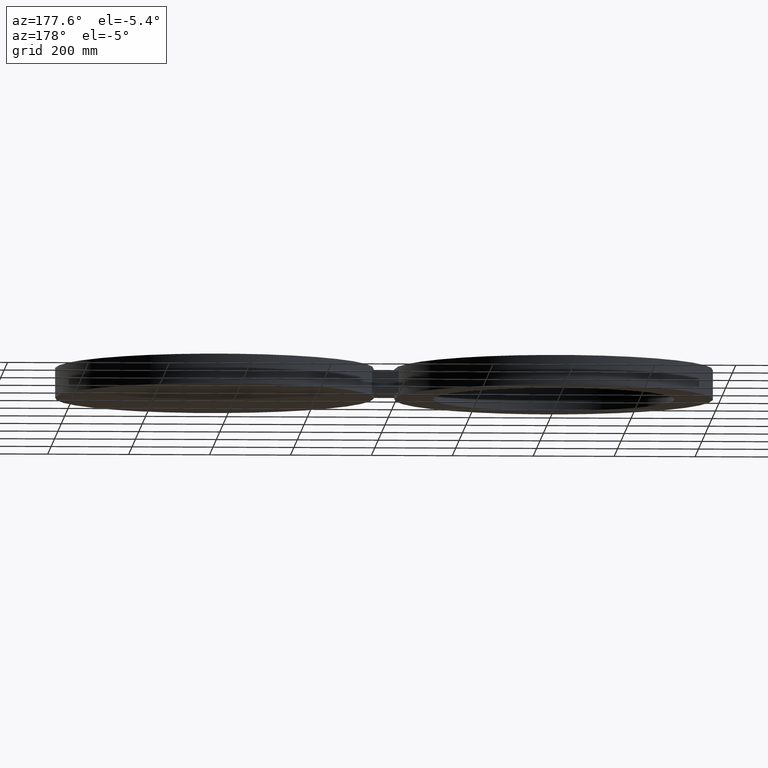
[diagram: clean part render]
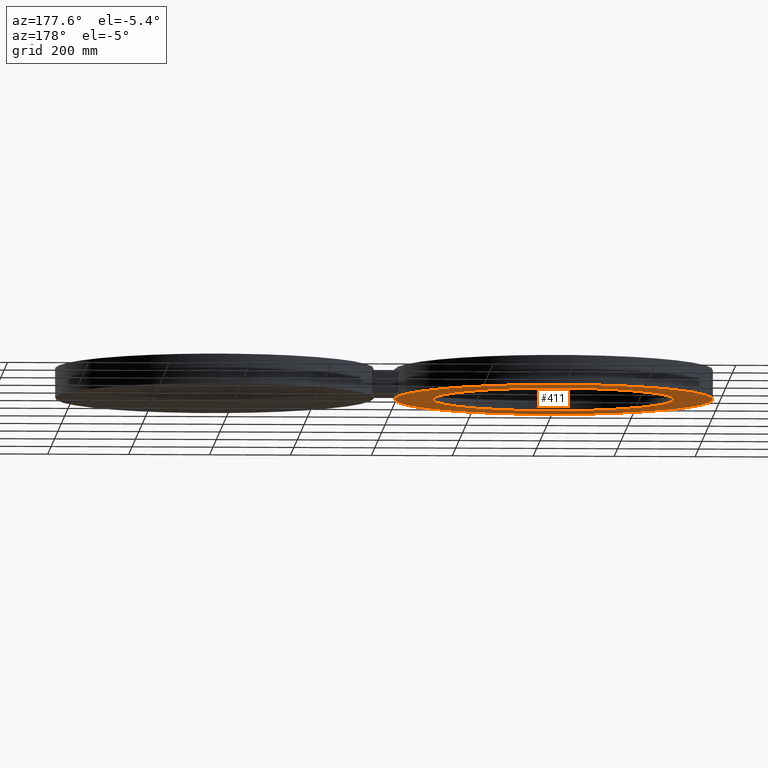
[diagram: same view with one face highlighted and labeled with its STEP entity id]
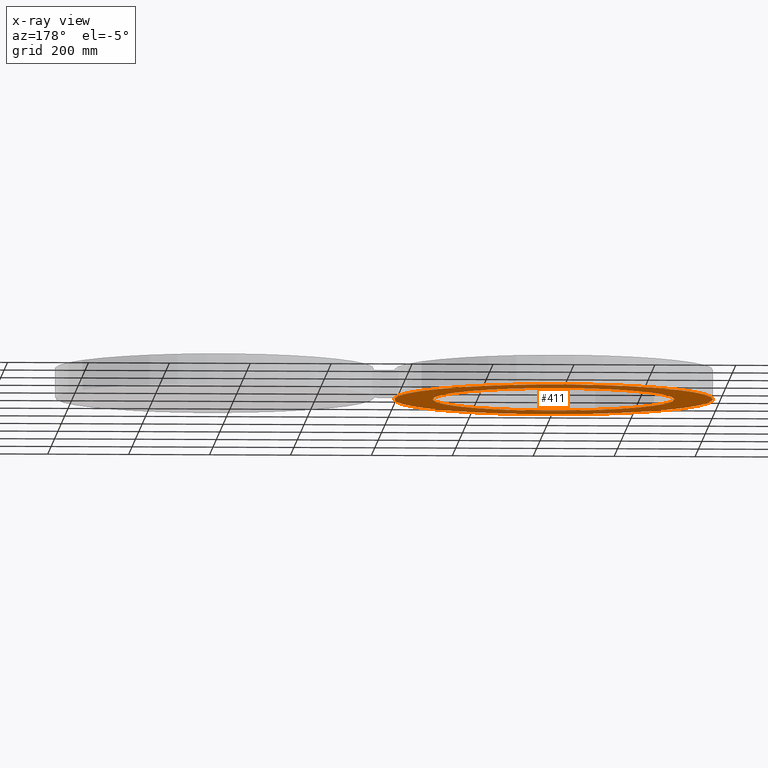
[diagram: x-ray of the same camera — body ghosted, the highlighted face saturated]
A machine part, auxiliary view. The second image highlights one B-rep face of the part: STEP entity #411.
The next image is the same camera in x-ray: the body ghosted, the highlighted face saturated — about 0% of this face is hidden behind the body in this view.
In plain terms, the highlighted planar face has unit normal (0, 0, 1).
Its self-contained STEP definition (entity closure, byte-faithful):
#51=AXIS2_PLACEMENT_3D('Circle Axis2P3D',#49,#50,$) ;
#110=AXIS2_PLACEMENT_3D('Circle Axis2P3D',#108,#109,$) ;
#136=AXIS2_PLACEMENT_3D('Circle Axis2P3D',#134,#135,$) ;
#185=AXIS2_PLACEMENT_3D('Circle Axis2P3D',#183,#184,$) ;
#252=AXIS2_PLACEMENT_3D('Plane Axis2P3D',#249,#250,#251) ;
#44=CARTESIAN_POINT('Vertex',(-10.3115951023,5.63325007862,-1.44000000001)) ;
#49=CARTESIAN_POINT('Axis2P3D Location',(8.52336574023E-017,-6.99353086378E-017,-1.44000000001)) ;
#53=CARTESIAN_POINT('Vertex',(10.3115951023,-5.63325007862,-1.44000000001)) ;
#108=CARTESIAN_POINT('Axis2P3D Location',(8.52336574023E-017,-6.99353086378E-017,-1.44000000001)) ;
#129=CARTESIAN_POINT('Vertex',(15.5000000001,0.,-1.44000000001)) ;
#134=CARTESIAN_POINT('Axis2P3D Location',(0.,0.,-1.44000000001)) ;
#138=CARTESIAN_POINT('Vertex',(-15.5000000001,-4.98518021402E-015,-1.44000000001)) ;
#183=CARTESIAN_POINT('Axis2P3D Location',(0.,0.,-1.44000000001)) ;
#249=CARTESIAN_POINT('Axis2P3D Location',(0.,0.,-1.44000000001)) ;
#50=DIRECTION('Axis2P3D Direction',(0.,-0.,-0.0393700787402)) ;
#109=DIRECTION('Axis2P3D Direction',(0.,-0.,-0.0393700787402)) ;
#135=DIRECTION('Axis2P3D Direction',(0.,0.,0.0393700787402)) ;
#184=DIRECTION('Axis2P3D Direction',(0.,0.,0.0393700787402)) ;
#250=DIRECTION('Axis2P3D Direction',(0.,0.,0.0393700787402)) ;
#251=DIRECTION('Axis2P3D XDirection',(0.0393700787402,0.,0.)) ;
#404=ORIENTED_EDGE('',*,*,#187,.F.) ;
#405=ORIENTED_EDGE('',*,*,#140,.F.) ;
#408=ORIENTED_EDGE('',*,*,#55,.T.) ;
#409=ORIENTED_EDGE('',*,*,#112,.T.) ;
#410=FACE_BOUND('',#407,.T.) ;
#411=ADVANCED_FACE('PartBody',(#406,#410),#253,.F.) ;
#52=CIRCLE('generated circle',#51,11.75) ;
#111=CIRCLE('generated circle',#110,11.75) ;
#137=CIRCLE('generated circle',#136,15.5000000001) ;
#186=CIRCLE('generated circle',#185,15.5000000001) ;
#55=EDGE_CURVE('',#54,#45,#52,.F.) ;
#112=EDGE_CURVE('',#45,#54,#111,.F.) ;
#140=EDGE_CURVE('',#130,#139,#137,.T.) ;
#187=EDGE_CURVE('',#139,#130,#186,.T.) ;
#403=EDGE_LOOP('',(#404,#405)) ;
#407=EDGE_LOOP('',(#408,#409)) ;
#406=FACE_OUTER_BOUND('',#403,.T.) ;
#253=PLANE('',#252) ;
#45=VERTEX_POINT('',#44) ;
#54=VERTEX_POINT('',#53) ;
#130=VERTEX_POINT('',#129) ;
#139=VERTEX_POINT('',#138) ;